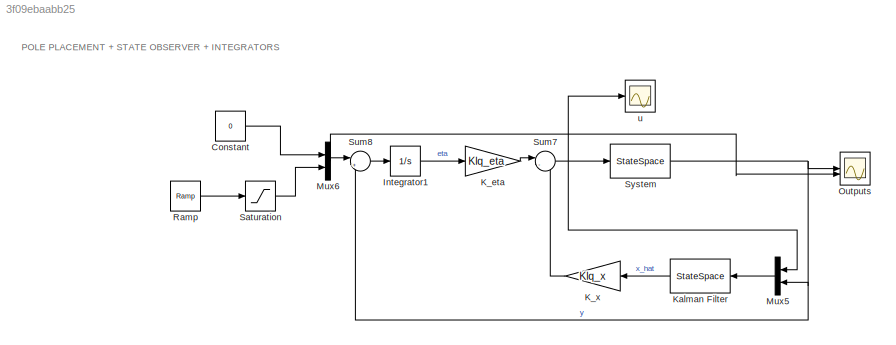
MODEL slx_3f09ebaabb25
KIND model
CONFIG AbsTol = auto
CONFIG EnableMultiTasking = on
CONFIG FixedStep = auto
CONFIG MaxStep = auto
CONFIG MinStep = auto
CONFIG RelTol = 1e-3
CONFIG SampleTimeConstraint = Unconstrained
CONFIG SolverName = ode15s
CONFIG StartTime = 0.0
CONFIG StopTime = 500
BLOCK [Constant] Constant
  Value = 0
BLOCK [Integrator] Integrator1
BLOCK [Gain] K_eta
  Gain = Klq_eta
  Multiplication = Matrix(K*u) (u vector)
BLOCK [Gain] K_x
  Gain = Klq_x
  Multiplication = Matrix(K*u) (u vector)
BLOCK [StateSpace] Kalman Filter
  A = A_kf
  B = B_kf
  C = C_kf
  D = D_kf
  InitialCondition = 0
BLOCK [Mux] Mux5
  DisplayOption = bar
  Inputs = 2
BLOCK [Mux] Mux6
  DisplayOption = bar
  Inputs = 2
BLOCK [Scope] Outputs
  Floating = off
  NumInputPorts = 2
  ScopeSpecificationString = Simulink.scopes.TimeScopeBlockCfg('CurrentConfiguration', extmgr.ConfigurationSet(extmgr.Configuration('Core','General UI',true),extmgr.Configuration('Core','Source UI',true),extmgr.Configuration('Sources','WiredSimulink',true,'DataLoggingVariableName','ScopeData3'),extmgr.Configuration('Visuals','Time Domain',true,'SerializedDisplays',{struct('MinYLimReal','-0.22024','MaxYLimReal','1.7698','YLabe...<+2094ch>
BLOCK [Reference] Ramp  REF=simulink/Sources/Ramp
  SourceBlock = simulink/Sources/Ramp
  SourceType = Ramp
BLOCK [Saturate] Saturation
  LowerLimit = 0
  UpperLimit = pi/2
BLOCK [Sum] Sum7
  Inputs = |--
BLOCK [Sum] Sum8
  Inputs = |+-
BLOCK [StateSpace] System
  A = A
  B = B
  C = C
  D = D
  InitialCondition = x0
BLOCK [Scope] u
  Floating = off
  NumInputPorts = 1
  ScopeSpecificationString = Simulink.scopes.TimeScopeBlockCfg('CurrentConfiguration', extmgr.ConfigurationSet(extmgr.Configuration('Core','General UI',true),extmgr.Configuration('Core','Source UI',true),extmgr.Configuration('Sources','WiredSimulink',true,'DataLoggingVariableName','ScopeData4','DataLoggingSaveFormat','StructureWithTime','DataLoggingLimitDataPoints',true,'DataLoggingDecimation','1','DataLoggingDecimateData',tr...<+2051ch>
ANNOTATION (root): POLE PLACEMENT + STATE OBSERVER + INTEGRATORS
LINE Constant:1 -> Mux6:1
LINE Integrator1:1 -> K_eta:1
LINE K_eta:1 -> Sum7:1
LINE K_x:1 -> Sum7:2
LINE Kalman Filter:1 -> K_x:1
LINE Mux5:1 -> Kalman Filter:1
NET Mux6:1 -> Outputs:2, Sum8:1
LINE Ramp:1 -> Saturation:1
LINE Saturation:1 -> Mux6:2
NET Sum7:1 -> Mux5:1, System:1, u:1
LINE Sum8:1 -> Integrator1:1
NET System:1 -> Mux5:2, Outputs:1, Sum8:2
note: NET lines group one-source signal fan-out (src -> all destinations, sorted); 1:1 wires keep LINE
